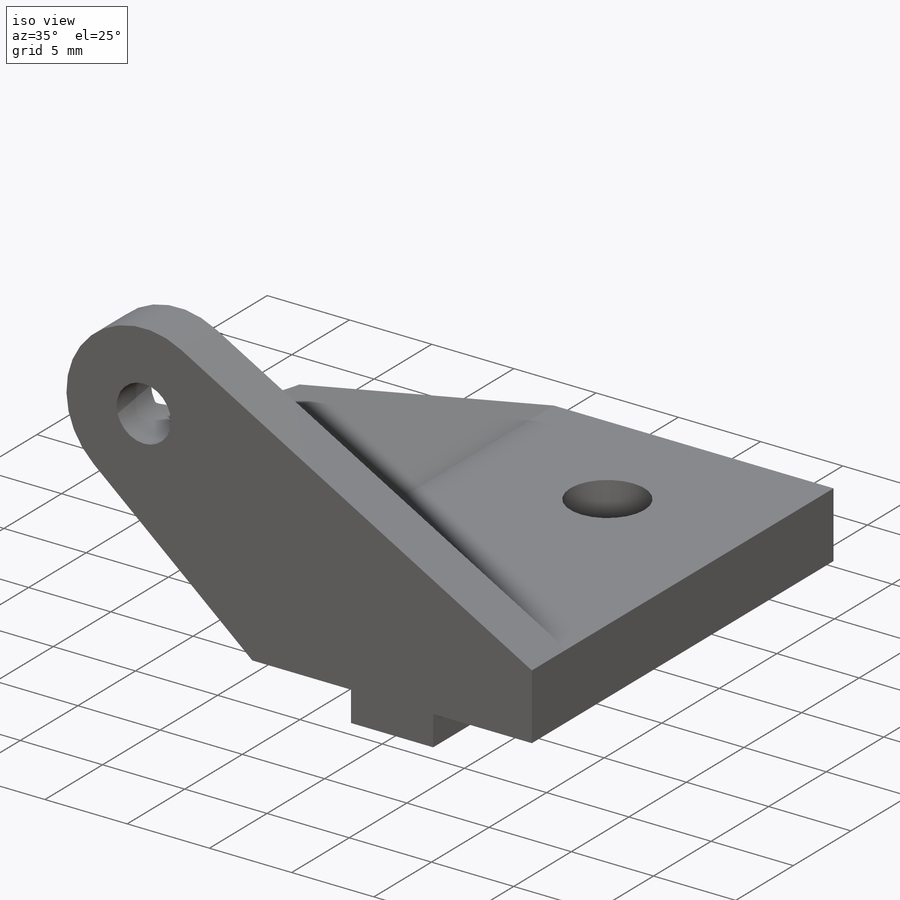
[diagram: iso view]
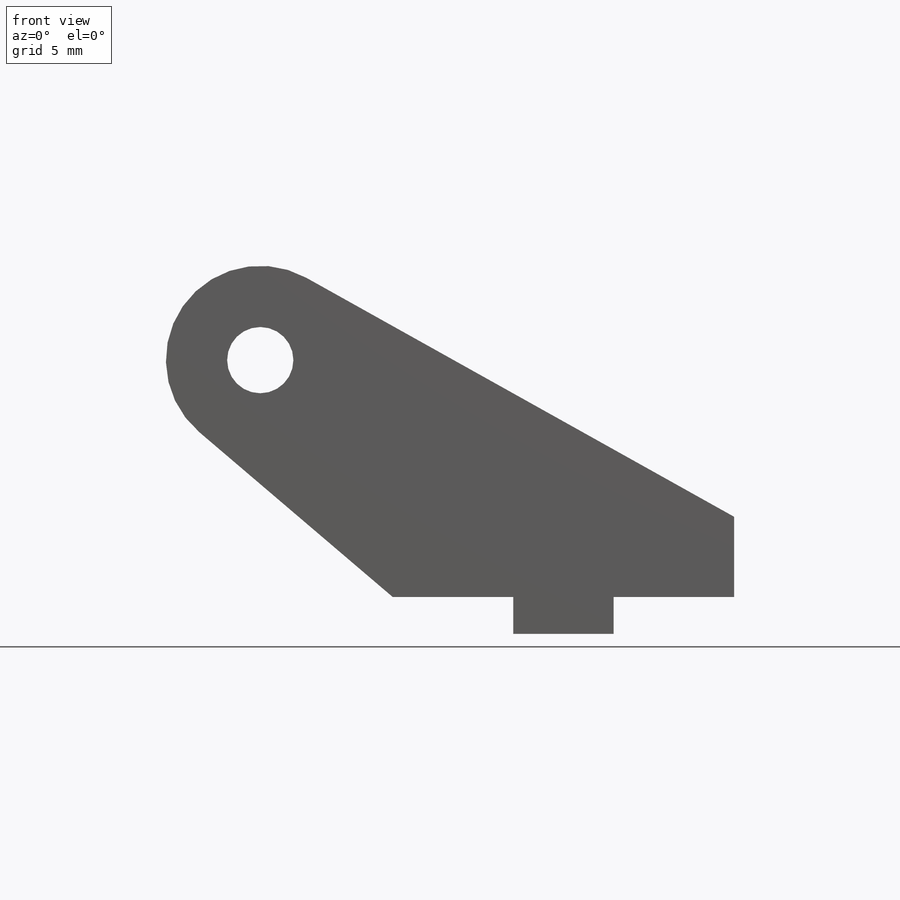
[diagram: front view]
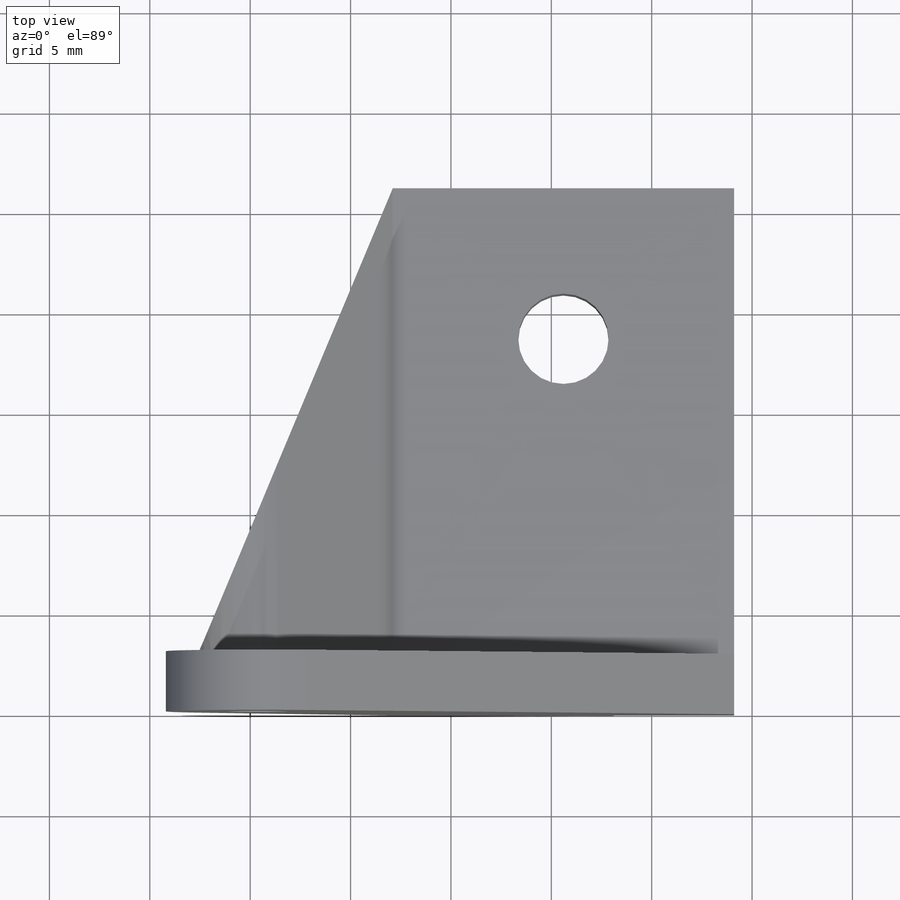
[diagram: top view]
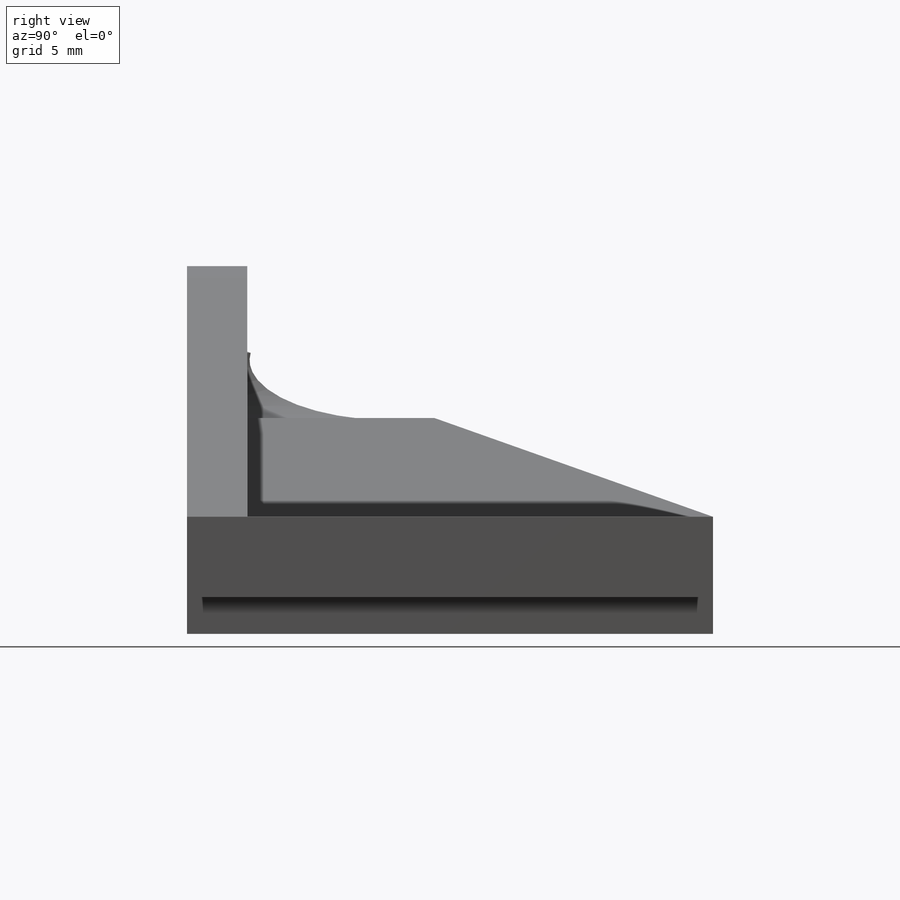
[diagram: right view]
SOLIDWORKS PART (.sldprt)
format: sldprt  version: not decoded by parser v0  size: 178,176 bytes
history: native  units: mm
features: sketch x6, extrude x3, cut_extrude x3, material x1 (+12 scaffold rows collapsed)
feature tree (25):
  scaffold x12  (default folders/planes/origin — collapsed)
  material  "ABS"
  sketch  "Sketch1"  dims[D1=5.0mm D2=17.0mm D3=4.0mm D4=1.8334mm]
  extrude  "Boss-Extrude1"  Depth=26.2mm
  sketch  "Sketch2"  dims[D1=4.5mm D2=7.5mm]
  cut_extrude  "Cut-Extrude1"  Depth=26.2mm
  sketch  "Sketch3"  dims[D1=3.2mm D2=4.7mm D3=6.6mm D4=7.8mm]
  extrude  "Boss-Extrude2"  Depth=3mm
  sketch  "Sketch4"
  extrude  "Boss-Extrude3"  [1 undecoded]
  sketch  "Sketch5"  dims[D1=3.3mm]
  cut_extrude  "Cut-Extrude2"  Depth=3mm
  sketch  "Sketch6"  dims[D1=6.0mm]
  cut_extrude  "Cut-Extrude3"  Depth=33mm
decode coverage: 10 of 12 modeling features carry decoded parameters
note: 1 parameter value undecoded
note: suppression state not decoded; provenance and decode notes live in map.json
